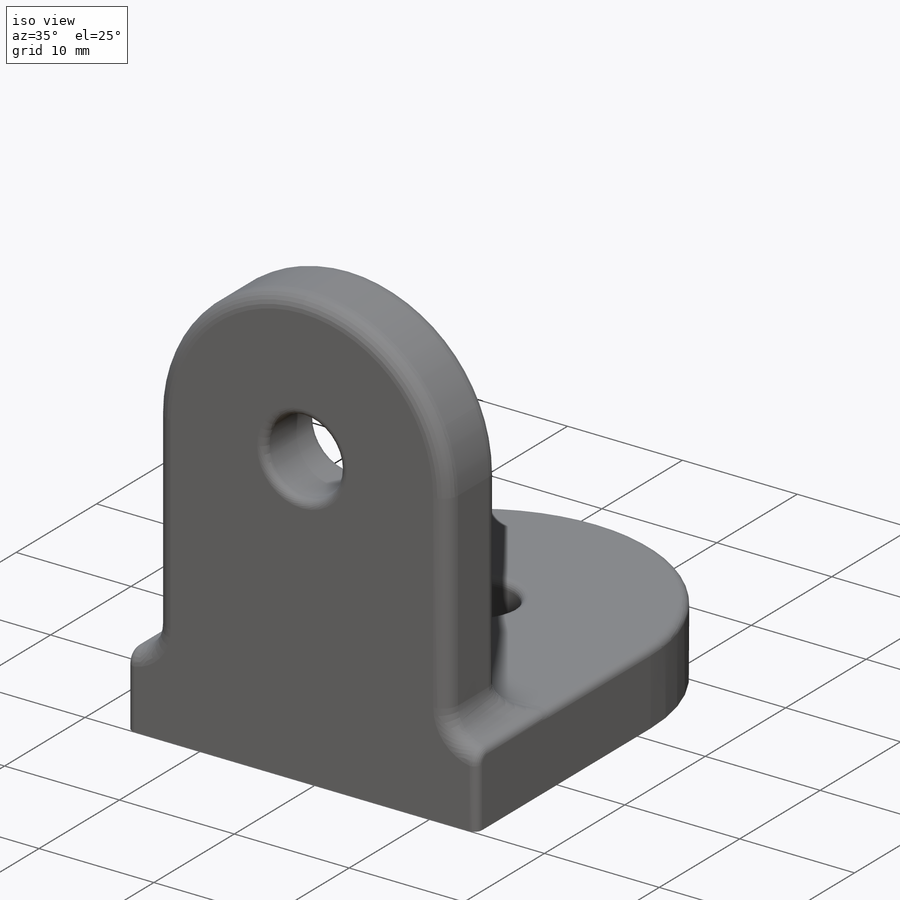
[diagram: iso view]
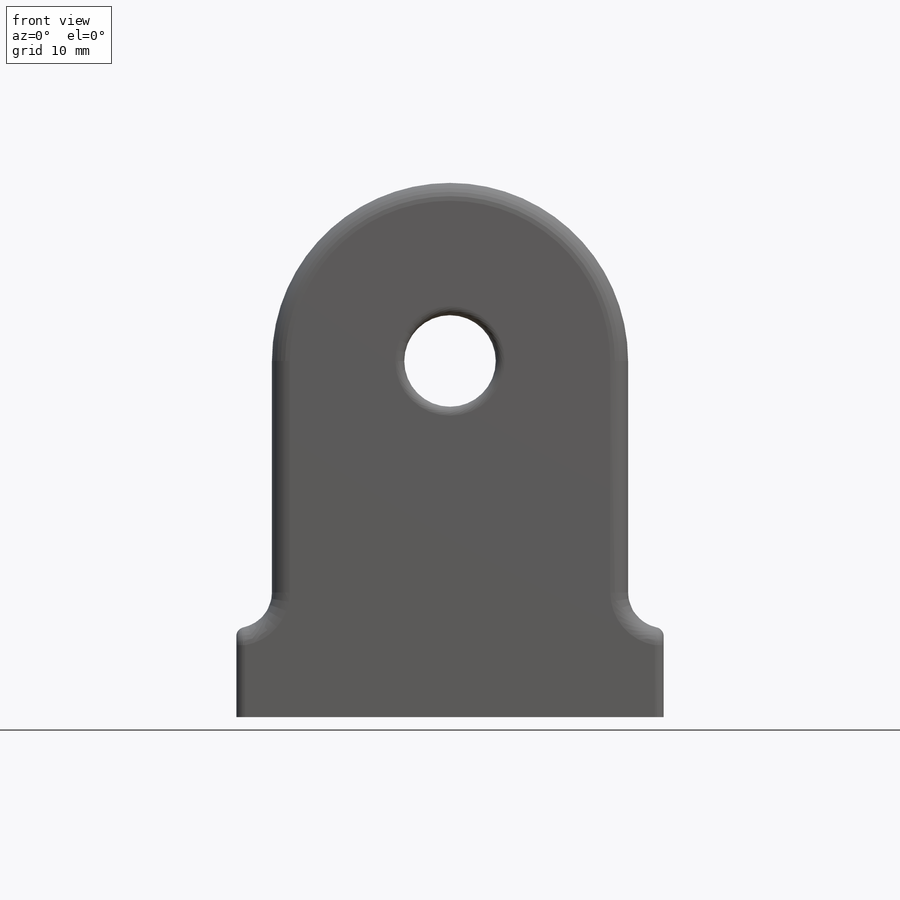
[diagram: front view]
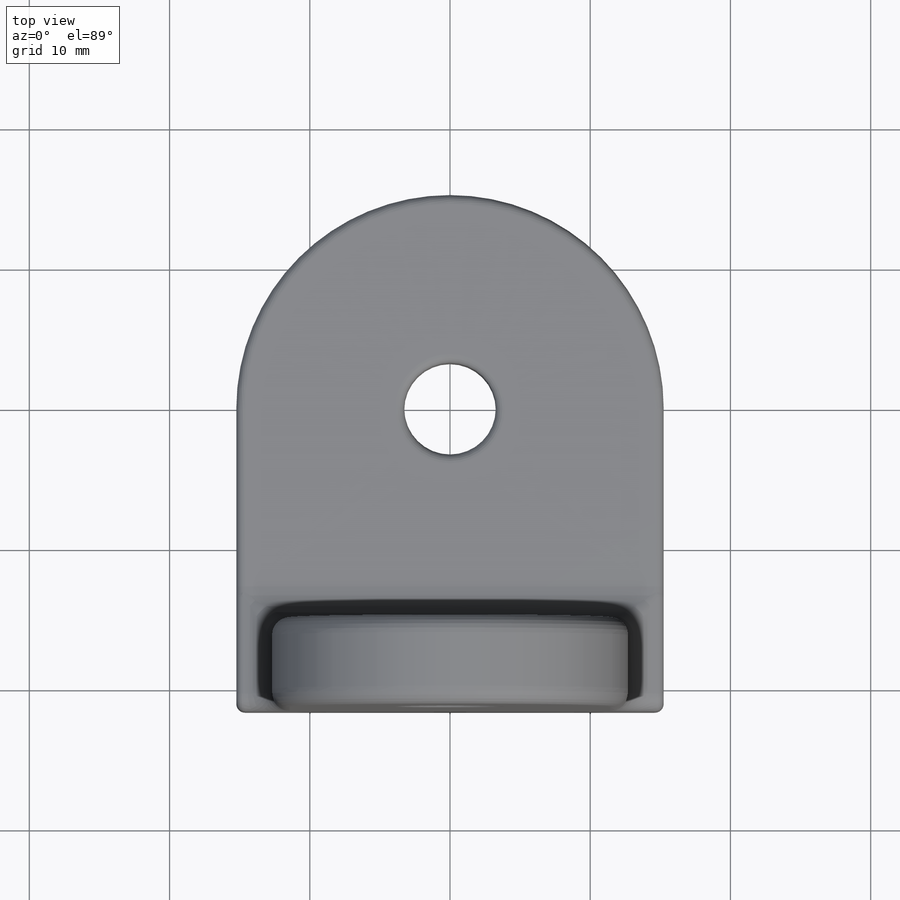
[diagram: top view]
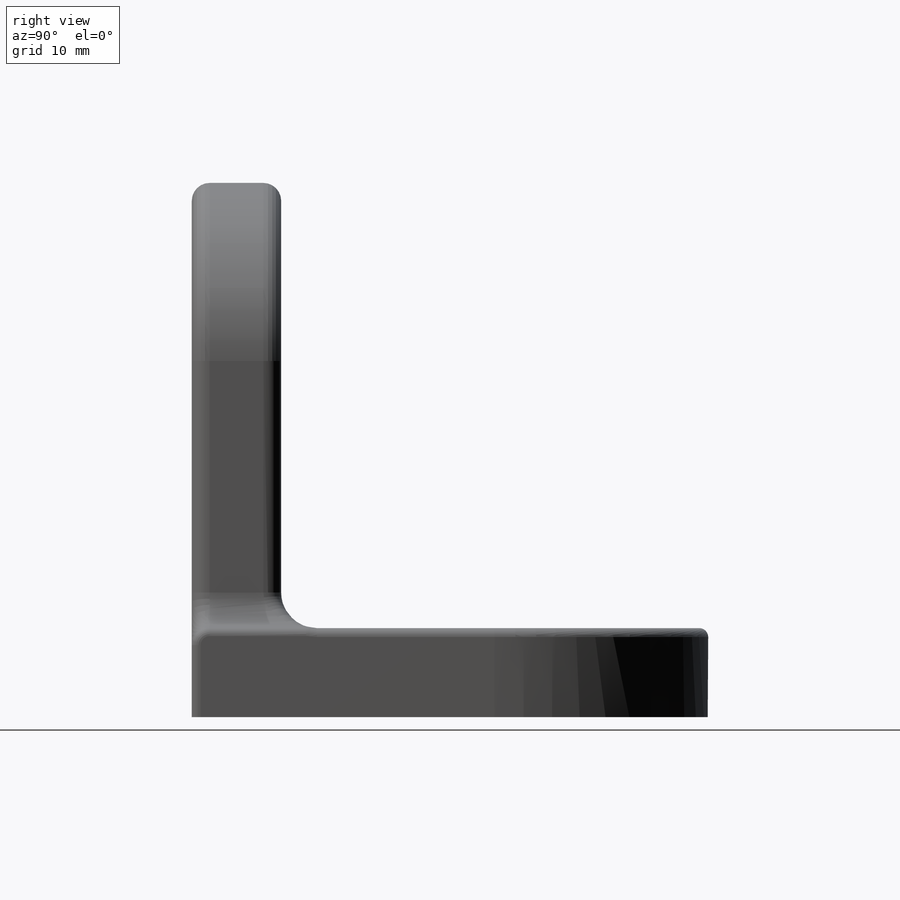
[diagram: right view]
SOLIDWORKS PART (.sldprt)
format: sldprt  version: not decoded by parser v0  size: 330,752 bytes
history: native  units: mm
features: sketch x6, fillet x4, extrude x2, hole x2, material x1 (+15 scaffold rows collapsed)
feature tree (30):
  scaffold x15  (default folders/planes/origin — collapsed)
  material  "Material <not specified>"
  sketch  "Sketch2"  dims[c1.D1=~21.039413mm c1.D2=15.24mm c2.D1=30.48mm c2.D2=15.24mm c2.D3=6.35mm c3.D1=30.48mm c3.D3=6.35mm c3.D2=15.24mm]
  extrude  "Boss-Extrude1"  Depth=6.35mm
  hole  "#97 (0.0059) Diameter Hole1"  Diameter=6.5278mm Depth=6.35mm
  sketch  "Sketch4"  dims[D1=~4.937115mm]
  sketch  "Sketch3"  dims[hole-wizard template sketch: 61 standard entries collapsed; hole parameters above]
  sketch  "Sketch10"  dims[D1=25.4mm D2=2.54mm D3=25.4mm]
  extrude  "Boss-Extrude3"  Depth=31.75mm
  fillet  "Fillet2"  Radius=12.7mm
  hole  "#97 (0.0059) Diameter Hole3"  Diameter=6.5278mm Depth=6.372132mm
  sketch  "Sketch12"  dims[D1=12.7mm D2=12.7mm]
  sketch  "Sketch11"  dims[hole-wizard template sketch: 60 standard entries collapsed; hole parameters kept: c18.Thru Hole Depth=~6.372132mm]
  fillet  "Fillet3"  Radius=2.54mm
  fillet  "Fillet5"  Radius=1.27mm
  fillet  "Fillet6"  Radius=0.635mm
decode coverage: 14 of 14 modeling features carry decoded parameters
note: ~ marks probable driven/reference dimensions
note: suppression state not decoded; provenance and decode notes live in map.json
